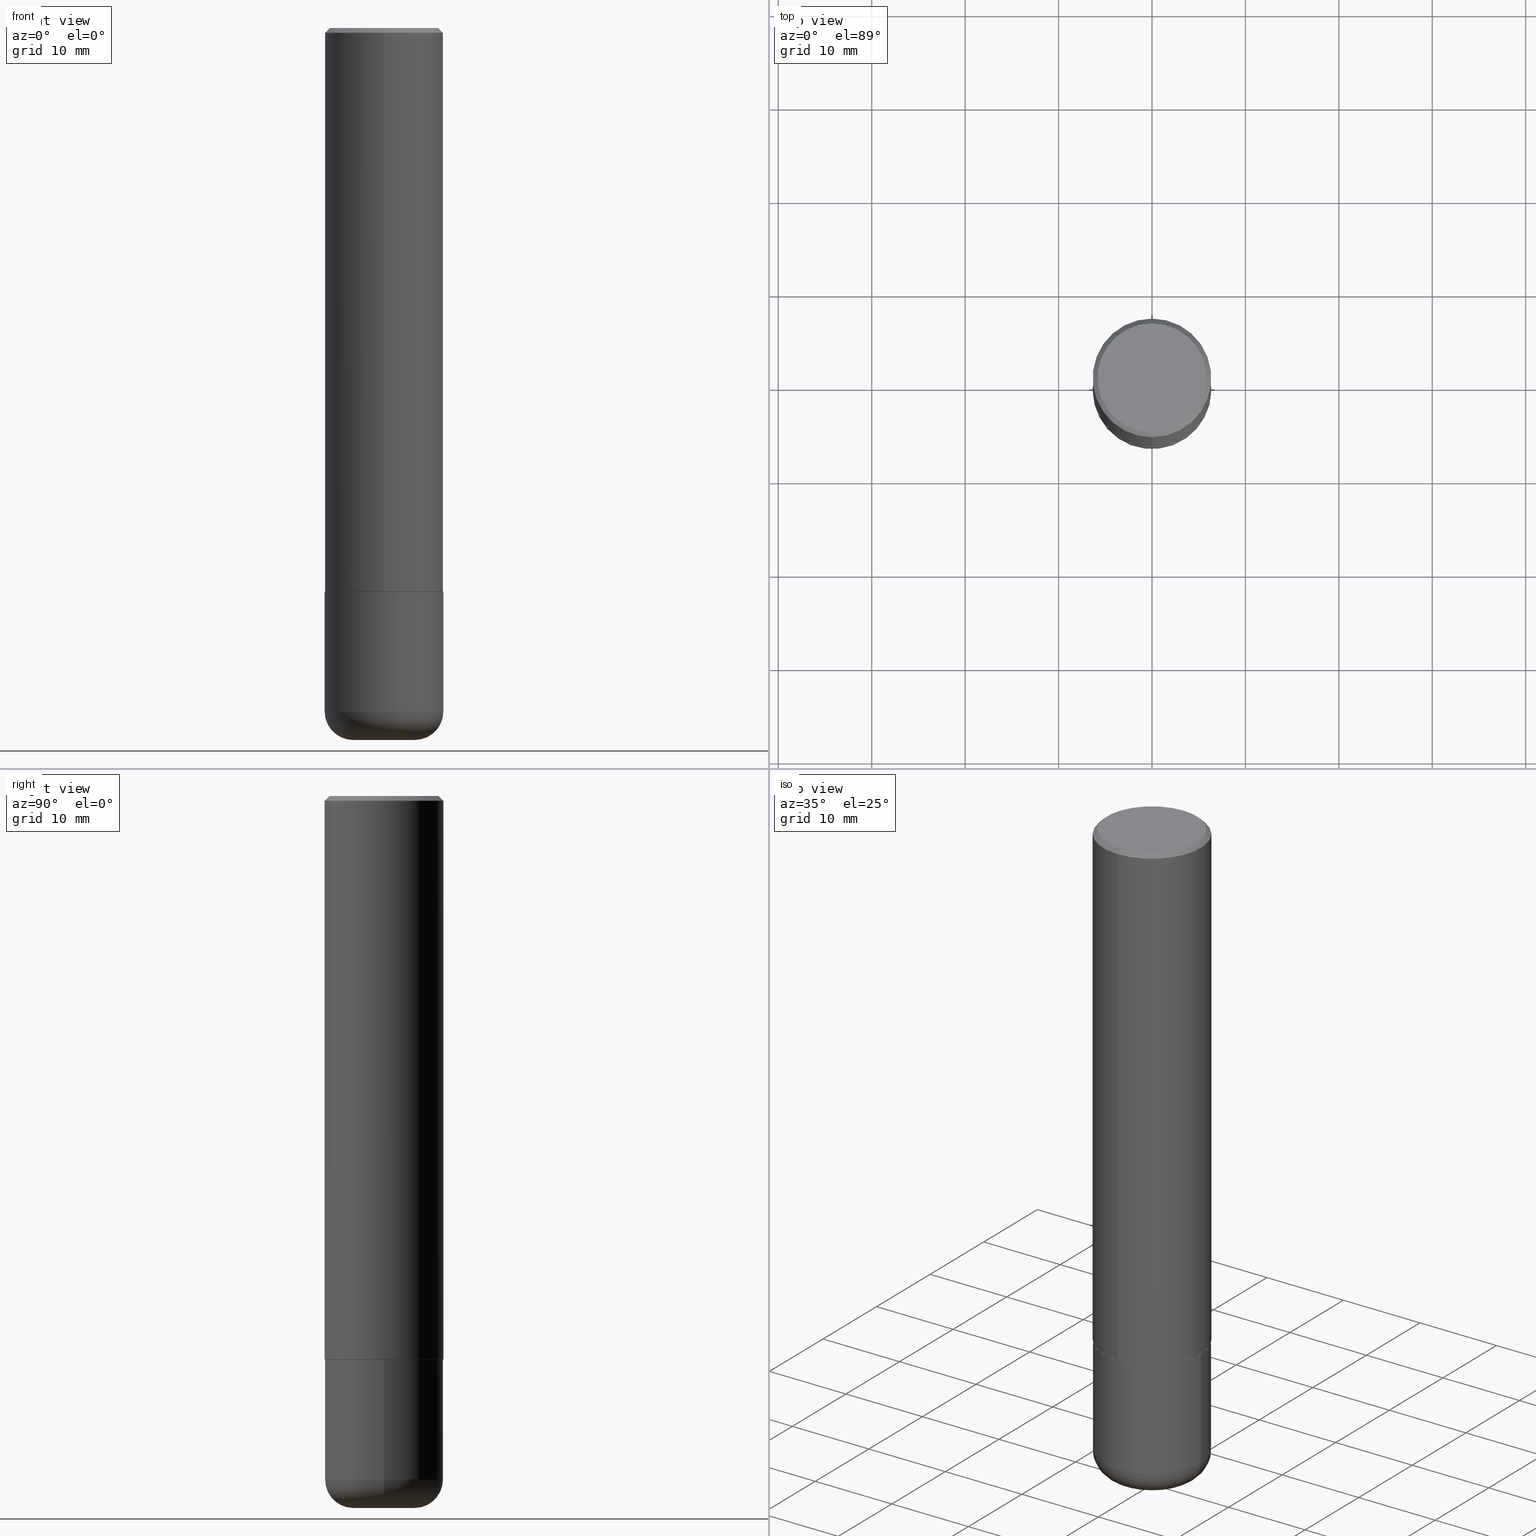
[diagram: canonical four-view strip — front | top / right | iso, engineering-drawing reading convention]
A machine part, canonical four-view strip (front | top / right | iso — engineering-drawing reading convention). The complete STEP part file that produces these views, byte-faithful:
ISO-10303-21;
HEADER;
FILE_DESCRIPTION (( 'STEP AP203' ),
    '1' );
FILE_NAME ('37029.STEP',
    '2024-03-01T18:54:27',
    ( '' ),
    ( '' ),
    'SwSTEP 2.0',
    'SolidWorks 2023',
    '' );
FILE_SCHEMA (( 'CONFIG_CONTROL_DESIGN' ));
ENDSEC;

DATA;
#1 = CARTESIAN_POINT ( 'NONE',  ( 4.891459535375212615E-31, -6.982215254237243146E-17, -0.02000000000000005593 ) ) ;
#2 = ORIENTED_EDGE ( 'NONE', *, *, #14, .F. ) ;
#3 = PLANE ( 'NONE',  #27 ) ;
#4 = DIRECTION ( 'NONE',  ( -2.445729767687599458E-29, 3.491107627118612255E-15, 1.000000000000000000 ) ) ;
#5 = CARTESIAN_POINT ( 'NONE',  ( -3.025389942482403152E-45, 4.318531852026494479E-31, 1.237009085162692923E-16 ) ) ;
#6 = PERSON_AND_ORGANIZATION ( #294, #274 ) ;
#7 = CARTESIAN_POINT ( 'NONE',  ( 5.806162468490361962E-29, -8.287889506779587323E-15, -2.374000000000000110 ) ) ;
#8 = ORIENTED_EDGE ( 'NONE', *, *, #38, .T. ) ;
#9 = COORDINATED_UNIVERSAL_TIME_OFFSET ( 5, 0, .BEHIND. ) ;
#10 = CIRCLE ( 'NONE', #218, 0.2299999999999998712 ) ;
#11 = CARTESIAN_POINT ( 'NONE',  ( 1.745740669421566875E-15, 0.2499999999999999167, -0.02000000000000092676 ) ) ;
#12 = AXIS2_PLACEMENT_3D ( 'NONE', #411, #34, #167 ) ;
#13 = CARTESIAN_POINT ( 'NONE',  ( 0.000000000000000000, 0.000000000000000000, 0.000000000000000000 ) ) ;
#14 = EDGE_CURVE ( 'NONE', #385, #163, #377, .T. ) ;
#15 =( CONVERSION_BASED_UNIT ( 'INCH', #233 ) LENGTH_UNIT ( ) NAMED_UNIT ( #258 ) );
#16 = ORIENTED_EDGE ( 'NONE', *, *, #309, .F. ) ;
#17 = PERSON_AND_ORGANIZATION ( #294, #274 ) ;
#18 = ORIENTED_EDGE ( 'NONE', *, *, #91, .T. ) ;
#19 = EDGE_CURVE ( 'NONE', #66, #345, #306, .T. ) ;
#20 = PERSON_AND_ORGANIZATION ( #294, #274 ) ;
#21 = VERTEX_POINT ( 'NONE', #126 ) ;
#22 = AXIS2_PLACEMENT_3D ( 'NONE', #169, #111, #363 ) ;
#23 = EDGE_CURVE ( 'NONE', #402, #244, #92, .T. ) ;
#24 = DIRECTION ( 'NONE',  ( 1.000000000000000000, -6.982962677686266711E-15, 0.000000000000000000 ) ) ;
#25 = FACE_OUTER_BOUND ( 'NONE', #117, .T. ) ;
#26 = EDGE_LOOP ( 'NONE', ( #284, #61 ) ) ;
#27 = AXIS2_PLACEMENT_3D ( 'NONE', #227, #69, #190 ) ;
#28 = CONICAL_SURFACE ( 'NONE', #301, 0.2500000000000000000, 0.7853981633974471688 ) ;
#29 = DIRECTION ( 'NONE',  ( -1.000000000000000000, 6.982962677686265922E-15, -4.876176775795935793E-29 ) ) ;
#30 = CIRCLE ( 'NONE', #120, 0.2500000000000000000 ) ;
#31 = ORIENTED_EDGE ( 'NONE', *, *, #109, .T. ) ;
#32 = DIRECTION ( 'NONE',  ( 1.000000000000000000, -6.982962677686273810E-15, 0.000000000000000000 ) ) ;
#33 = EDGE_LOOP ( 'NONE', ( #196, #18, #349, #153 ) ) ;
#34 = DIRECTION ( 'NONE',  ( 2.438088387897960049E-29, -3.491481338843145188E-15, -1.000000000000000000 ) ) ;
#35 = DIRECTION ( 'NONE',  ( -2.445729767687599458E-29, 3.491107627118612255E-15, 1.000000000000000000 ) ) ;
#36 = PERSON_AND_ORGANIZATION ( #294, #274 ) ;
#37 = DIRECTION ( 'NONE',  ( 1.000000000000000000, -6.982962677686266711E-15, 0.000000000000000000 ) ) ;
#38 = EDGE_CURVE ( 'NONE', #21, #345, #273, .T. ) ;
#39 = CARTESIAN_POINT ( 'NONE',  ( 1.675911042644703577E-15, 0.2299999999999998712, -6.792538457210110194E-16 ) ) ;
#40 = FACE_OUTER_BOUND ( 'NONE', #353, .T. ) ;
#41 = DIRECTION ( 'NONE',  ( -2.445468806185136597E-29, 3.491481338843145583E-15, 1.000000000000000000 ) ) ;
#42 = ORIENTED_EDGE ( 'NONE', *, *, #152, .T. ) ;
#43 = EDGE_CURVE ( 'NONE', #385, #402, #206, .T. ) ;
#44 = DIRECTION ( 'NONE',  ( -4.851104656540957964E-15, -0.7071067811865491270, -0.7071067811865459074 ) ) ;
#45 = VERTEX_POINT ( 'NONE', #75 ) ;
#46 = LINE ( 'NONE', #237, #57 ) ;
#47 = EDGE_LOOP ( 'NONE', ( #297, #223, #307, #16 ) ) ;
#48 = CALENDAR_DATE ( 2024, 1, 3 ) ;
#49 = EDGE_CURVE ( 'NONE', #82, #45, #132, .T. ) ;
#50 = AXIS2_PLACEMENT_3D ( 'NONE', #389, #164, #384 ) ;
#51 = ORIENTED_EDGE ( 'NONE', *, *, #165, .T. ) ;
#52 = DATE_AND_TIME ( #55, #113 ) ;
#53 = EDGE_LOOP ( 'NONE', ( #130, #80, #42, #114 ) ) ;
#54 = VERTEX_POINT ( 'NONE', #299 ) ;
#55 = CALENDAR_DATE ( 2024, 1, 3 ) ;
#56 = PRODUCT_RELATED_PRODUCT_CATEGORY ( 'detail', '', ( #406 ) ) ;
#57 = VECTOR ( 'NONE', #44, 39.37007874015748143 ) ;
#58 = PRODUCT_DEFINITION_SHAPE ( 'NONE', 'NONE',  #188 ) ;
#59 = CARTESIAN_POINT ( 'NONE',  ( -3.025389942482403152E-45, 4.318531852026494479E-31, 1.237009085162692923E-16 ) ) ;
#60 = DIRECTION ( 'NONE',  ( 2.438088387897960049E-29, -3.491481338843145188E-15, -1.000000000000000000 ) ) ;
#61 = ORIENTED_EDGE ( 'NONE', *, *, #358, .F. ) ;
#62 = EDGE_CURVE ( 'NONE', #82, #305, #204, .T. ) ;
#63 = AXIS2_PLACEMENT_3D ( 'NONE', #228, #198, #326 ) ;
#64 = LOCAL_TIME ( 13, 54, 27.00000000000000000, #9 ) ;
#65 = DIRECTION ( 'NONE',  ( -2.445729767687599458E-29, 3.491107627118612649E-15, 1.000000000000000000 ) ) ;
#66 = VERTEX_POINT ( 'NONE', #333 ) ;
#67 = DIRECTION ( 'NONE',  ( -2.445468806185136877E-29, 3.491481338843145188E-15, 1.000000000000000000 ) ) ;
#68 = CARTESIAN_POINT ( 'NONE',  ( 0.1300000000000000044, -1.138222916462865292E-14, -3.000000000000000444 ) ) ;
#69 = DIRECTION ( 'NONE',  ( -2.445729767687598898E-29, 3.491107627118612649E-15, 1.000000000000000000 ) ) ;
#70 = EDGE_CURVE ( 'NONE', #402, #385, #267, .T. ) ;
#71 = FACE_OUTER_BOUND ( 'NONE', #47, .T. ) ;
#72 = AXIS2_PLACEMENT_3D ( 'NONE', #280, #215, #216 ) ;
#73 = APPROVAL_STATUS ( 'not_yet_approved' ) ;
#74 = CARTESIAN_POINT ( 'NONE',  ( 5.808608198258048994E-29, -8.291380614406705732E-15, -2.375000000000000000 ) ) ;
#75 = CARTESIAN_POINT ( 'NONE',  ( -1.646519519465166573E-15, -0.2299999999999998712, 9.266556627535495054E-16 ) ) ;
#76 = ADVANCED_FACE ( 'NONE', ( #397 ), #85, .T. ) ;
#77 = DATE_TIME_ROLE ( 'creation_date' ) ;
#78 = DIRECTION ( 'NONE',  ( 2.445729767687598898E-29, -3.491107627118612649E-15, -1.000000000000000000 ) ) ;
#79 = APPLICATION_PROTOCOL_DEFINITION ( 'international standard', 'config_control_design', 1994, #145 ) ;
#80 = ORIENTED_EDGE ( 'NONE', *, *, #405, .T. ) ;
#81 = SECURITY_CLASSIFICATION_LEVEL ( 'unclassified' ) ;
#82 = VERTEX_POINT ( 'NONE', #39 ) ;
#83 = AXIS2_PLACEMENT_3D ( 'NONE', #225, #219, #413 ) ;
#84 = CARTESIAN_POINT ( 'NONE',  ( 1.769251412042707241E-15, 0.2489999999999917002, -2.375000000000000888 ) ) ;
#85 = TOROIDAL_SURFACE ( 'NONE', #321, 0.1300000000000000044, 0.1199999999999999123 ) ;
#86 = APPROVAL_STATUS ( 'not_yet_approved' ) ;
#87 = APPROVAL ( #73, 'UNSPECIFIED' ) ;
#88 = CARTESIAN_POINT ( 'NONE',  ( 5.808608198258048994E-29, -8.291380614406705732E-15, -2.375000000000000000 ) ) ;
#89 = CARTESIAN_POINT ( 'NONE',  ( 5.808608198258048994E-29, -8.291380614406705732E-15, -2.375000000000000000 ) ) ;
#90 = CARTESIAN_POINT ( 'NONE',  ( 7.336406418555409790E-29, -1.047444401652943635E-14, -3.000000000000000444 ) ) ;
#91 = EDGE_CURVE ( 'NONE', #163, #305, #395, .T. ) ;
#92 = LINE ( 'NONE', #251, #414 ) ;
#93 = PLANE ( 'NONE',  #121 ) ;
#94 = VERTEX_POINT ( 'NONE', #103 ) ;
#95 = CIRCLE ( 'NONE', #336, 0.1300000000000000044 ) ;
#96 = LOCAL_TIME ( 13, 54, 27.00000000000000000, #276 ) ;
#97 = DIRECTION ( 'NONE',  ( 2.445729767687599458E-29, -3.491107627118612255E-15, -1.000000000000000000 ) ) ;
#98 = EDGE_LOOP ( 'NONE', ( #149, #186, #174, #128 ) ) ;
#99 = ADVANCED_FACE ( 'NONE', ( #234 ), #105, .F. ) ;
#100 = DIRECTION ( 'NONE',  ( -2.445468806185136597E-29, 3.491481338843145583E-15, 1.000000000000000000 ) ) ;
#101 = DIRECTION ( 'NONE',  ( -6.982962677686265922E-15, -1.000000000000000000, 3.278217592397112312E-15 ) ) ;
#102 = PERSON_AND_ORGANIZATION_ROLE ( 'design_owner' ) ;
#103 = CARTESIAN_POINT ( 'NONE',  ( -0.2500000000000000000, -7.397510378410116032E-15, -2.375000000000000000 ) ) ;
#104 = MECHANICAL_CONTEXT ( 'NONE', #119, 'mechanical' ) ;
#105 = PLANE ( 'NONE',  #346 ) ;
#106 = CLOSED_SHELL ( 'NONE', ( #347, #388, #230, #342, #410, #282, #304, #99 ) ) ;
#107 = DIRECTION ( 'NONE',  ( -2.445729767687599458E-29, 3.491107627118612255E-15, 1.000000000000000000 ) ) ;
#108 = CARTESIAN_POINT ( 'NONE',  ( 1.776356839400251254E-15, 0.2500000000000001110, -8.727769067796535567E-16 ) ) ;
#109 = EDGE_CURVE ( 'NONE', #21, #415, #231, .T. ) ;
#110 = ORIENTED_EDGE ( 'NONE', *, *, #62, .T. ) ;
#111 = DIRECTION ( 'NONE',  ( 0.000000000000000000, 0.000000000000000000, 1.000000000000000000 ) ) ;
#112 = FACE_OUTER_BOUND ( 'NONE', #33, .T. ) ;
#113 = LOCAL_TIME ( 13, 54, 27.00000000000000000, #408 ) ;
#114 = ORIENTED_EDGE ( 'NONE', *, *, #62, .F. ) ;
#115 = CC_DESIGN_PERSON_AND_ORGANIZATION_ASSIGNMENT ( #6, #175, ( #188 ) ) ;
#116 = DESIGN_CONTEXT ( 'detailed design', #145, 'design' ) ;
#117 = EDGE_LOOP ( 'NONE', ( #404, #338, #271, #210 ) ) ;
#118 = PERSON_AND_ORGANIZATION_ROLE ( 'design_supplier' ) ;
#119 = APPLICATION_CONTEXT ( 'configuration controlled 3d designs of mechanical parts and assemblies' ) ;
#120 = AXIS2_PLACEMENT_3D ( 'NONE', #331, #296, #37 ) ;
#121 = AXIS2_PLACEMENT_3D ( 'NONE', #352, #60, #29 ) ;
#122 = CARTESIAN_POINT ( 'NONE',  ( 7.042950161813194609E-29, -1.005546625586826130E-14, -2.880000000000000338 ) ) ;
#123 = SHAPE_DEFINITION_REPRESENTATION ( #58, #285 ) ;
#124 = FACE_OUTER_BOUND ( 'NONE', #226, .T. ) ;
#125 = DIRECTION ( 'NONE',  ( 1.000000000000000000, -6.982962677686266711E-15, 4.876176775795935793E-29 ) ) ;
#126 = CARTESIAN_POINT ( 'NONE',  ( 0.2499999999999999722, -1.180120692528982640E-14, -2.880000000000000338 ) ) ;
#127 = FACE_OUTER_BOUND ( 'NONE', #375, .T. ) ;
#128 = ORIENTED_EDGE ( 'NONE', *, *, #316, .F. ) ;
#129 = CARTESIAN_POINT ( 'NONE',  ( -0.2500000000000000000, 1.776356839400250465E-15, -1.229733772563726445E-29 ) ) ;
#130 = ORIENTED_EDGE ( 'NONE', *, *, #334, .F. ) ;
#131 = APPROVAL ( #86, 'UNSPECIFIED' ) ;
#132 = CIRCLE ( 'NONE', #281, 0.2299999999999998712 ) ;
#133 = AXIS2_PLACEMENT_3D ( 'NONE', #90, #286, #32 ) ;
#134 = DIRECTION ( 'NONE',  ( 6.982962677686265922E-15, 1.000000000000000000, -3.483106191921935554E-15 ) ) ;
#135 = DIRECTION ( 'NONE',  ( -6.982962677686265922E-15, -1.000000000000000000, 3.483106191921935554E-15 ) ) ;
#136 = DIRECTION ( 'NONE',  ( 4.937700262164541731E-15, 0.7071067811865442421, -0.7071067811865507924 ) ) ;
#137 = CYLINDRICAL_SURFACE ( 'NONE', #266, 0.2500000000000000000 ) ;
#138 = DIRECTION ( 'NONE',  ( -2.445468806185136597E-29, 3.491481338843145583E-15, 1.000000000000000000 ) ) ;
#139 = VERTEX_POINT ( 'NONE', #68 ) ;
#140 = AXIS2_PLACEMENT_3D ( 'NONE', #350, #252, #313 ) ;
#141 = CALENDAR_DATE ( 2024, 1, 3 ) ;
#142 = EDGE_CURVE ( 'NONE', #139, #66, #95, .T. ) ;
#143 = DIRECTION ( 'NONE',  ( -2.445729767687599458E-29, 3.491107627118612255E-15, 1.000000000000000000 ) ) ;
#144 = AXIS2_PLACEMENT_3D ( 'NONE', #7, #362, #264 ) ;
#145 = APPLICATION_CONTEXT ( 'configuration controlled 3d designs of mechanical parts and assemblies' ) ;
#146 = CYLINDRICAL_SURFACE ( 'NONE', #182, 0.2500000000000001110 ) ;
#147 = ORIENTED_EDGE ( 'NONE', *, *, #49, .T. ) ;
#148 = EDGE_CURVE ( 'NONE', #305, #54, #154, .T. ) ;
#149 = ORIENTED_EDGE ( 'NONE', *, *, #19, .F. ) ;
#150 = APPROVAL_ROLE ( '' ) ;
#151 = EDGE_LOOP ( 'NONE', ( #272, #287 ) ) ;
#152 = EDGE_CURVE ( 'NONE', #54, #305, #399, .T. ) ;
#153 = ORIENTED_EDGE ( 'NONE', *, *, #376, .F. ) ;
#154 = CIRCLE ( 'NONE', #63, 0.2500000000000000000 ) ;
#155 = CIRCLE ( 'NONE', #133, 0.1300000000000000044 ) ;
#156 = APPROVAL_ROLE ( '' ) ;
#157 = DIRECTION ( 'NONE',  ( -2.445729767687599458E-29, 3.491107627118612255E-15, 1.000000000000000000 ) ) ;
#158 = DIRECTION ( 'NONE',  ( 6.982962677686265922E-15, 1.000000000000000000, -3.483106191921935554E-15 ) ) ;
#159 = ORIENTED_EDGE ( 'NONE', *, *, #43, .T. ) ;
#160 = VECTOR ( 'NONE', #67, 39.37007874015748143 ) ;
#161 = VECTOR ( 'NONE', #365, 39.37007874015748143 ) ;
#162 = FACE_OUTER_BOUND ( 'NONE', #184, .T. ) ;
#163 = VERTEX_POINT ( 'NONE', #172 ) ;
#164 = DIRECTION ( 'NONE',  ( -2.445729767687599458E-29, 3.491107627118612255E-15, 1.000000000000000000 ) ) ;
#165 = EDGE_CURVE ( 'NONE', #163, #244, #279, .T. ) ;
#166 = ORIENTED_EDGE ( 'NONE', *, *, #334, .T. ) ;
#167 = DIRECTION ( 'NONE',  ( -1.000000000000000000, 6.982962677686265922E-15, -4.876176775795935793E-29 ) ) ;
#168 = CARTESIAN_POINT ( 'NONE',  ( 4.891459535375212615E-31, -6.982215254237243146E-17, -0.02000000000000005593 ) ) ;
#169 = CARTESIAN_POINT ( 'NONE',  ( 0.000000000000000000, 0.000000000000000000, 0.000000000000000000 ) ) ;
#170 = DIRECTION ( 'NONE',  ( -6.982962677686265133E-15, -1.000000000000000000, 3.291383124896702687E-15 ) ) ;
#171 = DATE_AND_TIME ( #332, #312 ) ;
#172 = CARTESIAN_POINT ( 'NONE',  ( 1.776356839400280836E-15, 0.2499999999999919786, -2.374000000000000998 ) ) ;
#173 = EDGE_CURVE ( 'NONE', #415, #94, #30, .T. ) ;
#174 = ORIENTED_EDGE ( 'NONE', *, *, #309, .T. ) ;
#175 = PERSON_AND_ORGANIZATION_ROLE ( 'creator' ) ;
#176 = EDGE_LOOP ( 'NONE', ( #180, #270, #31, #185 ) ) ;
#177 = APPROVAL_PERSON_ORGANIZATION ( #310, #131, #156 ) ;
#178 = ORIENTED_EDGE ( 'NONE', *, *, #165, .F. ) ;
#179 = DIRECTION ( 'NONE',  ( -6.982962677686266711E-15, -1.000000000000000000, 3.491107627118612649E-15 ) ) ;
#180 = ORIENTED_EDGE ( 'NONE', *, *, #275, .F. ) ;
#181 = AXIS2_PLACEMENT_3D ( 'NONE', #89, #259, #322 ) ;
#182 = AXIS2_PLACEMENT_3D ( 'NONE', #372, #327, #179 ) ;
#183 = AXIS2_PLACEMENT_3D ( 'NONE', #122, #381, #221 ) ;
#184 = EDGE_LOOP ( 'NONE', ( #8, #254, #343, #323 ) ) ;
#185 = ORIENTED_EDGE ( 'NONE', *, *, #290, .F. ) ;
#186 = ORIENTED_EDGE ( 'NONE', *, *, #358, .T. ) ;
#187 = PERSON_AND_ORGANIZATION_ROLE ( 'classification_officer' ) ;
#188 = PRODUCT_DEFINITION ( 'UNKNOWN', '', #193, #116 ) ;
#189 = DIRECTION ( 'NONE',  ( -6.982962677686265922E-15, -1.000000000000000000, 3.491107627118611860E-15 ) ) ;
#190 = DIRECTION ( 'NONE',  ( -6.982962677686265922E-15, -1.000000000000000000, 3.491107627118612649E-15 ) ) ;
#191 = ORIENTED_EDGE ( 'NONE', *, *, #43, .F. ) ;
#192 = CONICAL_SURFACE ( 'NONE', #181, 0.2489999999999999991, 0.7853981633975507526 ) ;
#193 = PRODUCT_DEFINITION_FORMATION_WITH_SPECIFIED_SOURCE ( 'ANY', '', #406, .NOT_KNOWN. ) ;
#194 = APPROVAL ( #238, 'UNSPECIFIED' ) ;
#195 = CARTESIAN_POINT ( 'NONE',  ( 1.772804125721508731E-15, 0.2489999999999917002, -2.375000000000000888 ) ) ;
#196 = ORIENTED_EDGE ( 'NONE', *, *, #213, .T. ) ;
#197 = DIRECTION ( 'NONE',  ( -2.445468806185136597E-29, 3.491481338843145583E-15, 1.000000000000000000 ) ) ;
#198 = DIRECTION ( 'NONE',  ( -2.445729767687599458E-29, 3.491107627118612255E-15, 1.000000000000000000 ) ) ;
#199 =( NAMED_UNIT ( * ) PLANE_ANGLE_UNIT ( ) SI_UNIT ( $, .RADIAN. ) );
#200 = DIRECTION ( 'NONE',  ( 1.000000000000000000, -6.982962677686273810E-15, 0.000000000000000000 ) ) ;
#201 = APPROVAL_ROLE ( '' ) ;
#202 = CARTESIAN_POINT ( 'NONE',  ( 7.336406418555409790E-29, -1.047444401652943635E-14, -3.000000000000000444 ) ) ;
#203 = APPLICATION_PROTOCOL_DEFINITION ( 'international standard', 'config_control_design', 1994, #119 ) ;
#204 = LINE ( 'NONE', #11, #232 ) ;
#205 = CC_DESIGN_PERSON_AND_ORGANIZATION_ASSIGNMENT ( #239, #187, ( #291 ) ) ;
#206 = CIRCLE ( 'NONE', #242, 0.2489999999999999991 ) ;
#207 = CYLINDRICAL_SURFACE ( 'NONE', #243, 0.2500000000000001110 ) ;
#208 = VECTOR ( 'NONE', #65, 39.37007874015748143 ) ;
#209 = DATE_AND_TIME ( #48, #96 ) ;
#210 = ORIENTED_EDGE ( 'NONE', *, *, #23, .F. ) ;
#211 = PERSON_AND_ORGANIZATION_ROLE ( 'creator' ) ;
#212 = AXIS2_PLACEMENT_3D ( 'NONE', #255, #197, #24 ) ;
#213 = EDGE_CURVE ( 'NONE', #244, #163, #390, .T. ) ;
#214 = AXIS2_PLACEMENT_3D ( 'NONE', #168, #4, #135 ) ;
#215 = DIRECTION ( 'NONE',  ( 7.105427357601001859E-15, 1.000000000000000000, -3.491481338843145583E-15 ) ) ;
#216 = DIRECTION ( 'NONE',  ( -1.000000000000000000, 7.105427357601003436E-15, 0.000000000000000000 ) ) ;
#217 = ADVANCED_FACE ( 'NONE', ( #71 ), #355, .T. ) ;
#218 = AXIS2_PLACEMENT_3D ( 'NONE', #59, #157, #189 ) ;
#219 = DIRECTION ( 'NONE',  ( -6.982962677686266711E-15, -1.000000000000000000, 3.491481338843145583E-15 ) ) ;
#220 = FACE_OUTER_BOUND ( 'NONE', #26, .T. ) ;
#221 = DIRECTION ( 'NONE',  ( 1.000000000000000000, -6.982962677686262766E-15, 0.000000000000000000 ) ) ;
#222 = LINE ( 'NONE', #354, #208 ) ;
#223 = ORIENTED_EDGE ( 'NONE', *, *, #19, .T. ) ;
#224 = VECTOR ( 'NONE', #407, 39.37007874015748143 ) ;
#225 = CARTESIAN_POINT ( 'NONE',  ( 0.1300000000000000044, -1.096325140396747629E-14, -2.880000000000000338 ) ) ;
#226 = EDGE_LOOP ( 'NONE', ( #2, #159, #357, #178 ) ) ;
#227 = CARTESIAN_POINT ( 'NONE',  ( 5.808608198258048994E-29, -8.291380614406705732E-15, -2.375000000000000000 ) ) ;
#228 = CARTESIAN_POINT ( 'NONE',  ( 4.891459535375212615E-31, -6.982215254237243146E-17, -0.02000000000000005593 ) ) ;
#229 = PERSON_AND_ORGANIZATION ( #294, #274 ) ;
#230 = ADVANCED_FACE ( 'NONE', ( #317 ), #412, .T. ) ;
#231 = LINE ( 'NONE', #360, #161 ) ;
#232 = VECTOR ( 'NONE', #136, 39.37007874015748143 ) ;
#233 = LENGTH_MEASURE_WITH_UNIT ( LENGTH_MEASURE( 0.02539999999999999897 ), #303 );
#234 = FACE_OUTER_BOUND ( 'NONE', #240, .T. ) ;
#235 = ADVANCED_FACE ( 'NONE', ( #162 ), #359, .T. ) ;
#236 = CONICAL_SURFACE ( 'NONE', #50, 0.2489999999999999991, 0.7853981633975507526 ) ;
#237 = CARTESIAN_POINT ( 'NONE',  ( -1.715124499442882299E-15, -0.2500000000000000555, -0.01999999999999918510 ) ) ;
#238 = APPROVAL_STATUS ( 'not_yet_approved' ) ;
#239 = PERSON_AND_ORGANIZATION ( #294, #274 ) ;
#240 = EDGE_LOOP ( 'NONE', ( #147, #166 ) ) ;
#241 = CALENDAR_DATE ( 2024, 1, 3 ) ;
#242 = AXIS2_PLACEMENT_3D ( 'NONE', #88, #143, #401 ) ;
#243 = AXIS2_PLACEMENT_3D ( 'NONE', #339, #107, #263 ) ;
#244 = VERTEX_POINT ( 'NONE', #361 ) ;
#245 = MANIFOLD_SOLID_BREP ( 'Body-Move/Copy2[1]', #344 ) ;
#246 = COORDINATED_UNIVERSAL_TIME_OFFSET ( 5, 0, .BEHIND. ) ;
#247 = MANIFOLD_SOLID_BREP ( 'Body-Move/Copy2[2]', #106 ) ;
#248 = CARTESIAN_POINT ( 'NONE',  ( 7.042950161813194609E-29, -1.005546625586826130E-14, -2.880000000000000338 ) ) ;
#249 = AXIS2_PLACEMENT_3D ( 'NONE', #74, #35, #170 ) ;
#250 = CARTESIAN_POINT ( 'NONE',  ( 1.745740669421566875E-15, 0.2499999999999999167, -0.02000000000000092676 ) ) ;
#251 = CARTESIAN_POINT ( 'NONE',  ( -1.738757706743822090E-15, -0.2490000000000082980, -2.374999999999999556 ) ) ;
#252 = DIRECTION ( 'NONE',  ( -2.445468806185136597E-29, 3.491481338843145583E-15, 1.000000000000000000 ) ) ;
#253 = CC_DESIGN_DATE_AND_TIME_ASSIGNMENT ( #379, #341, ( #291 ) ) ;
#254 = ORIENTED_EDGE ( 'NONE', *, *, #275, .T. ) ;
#255 = CARTESIAN_POINT ( 'NONE',  ( 5.807988414689700538E-29, -8.292268179752471696E-15, -2.375000000000000000 ) ) ;
#256 = ORIENTED_EDGE ( 'NONE', *, *, #70, .F. ) ;
#257 = AXIS2_PLACEMENT_3D ( 'NONE', #248, #278, #383 ) ;
#258 = DIMENSIONAL_EXPONENTS ( 1.000000000000000000, 0.000000000000000000, 0.000000000000000000, 0.000000000000000000, 0.000000000000000000, 0.000000000000000000, 0.000000000000000000 ) ;
#259 = DIRECTION ( 'NONE',  ( -2.445729767687599458E-29, 3.491107627118612255E-15, 1.000000000000000000 ) ) ;
#260 = CARTESIAN_POINT ( 'NONE',  ( 5.806162468490361962E-29, -8.287889506779587323E-15, -2.374000000000000110 ) ) ;
#261 = CC_DESIGN_PERSON_AND_ORGANIZATION_ASSIGNMENT ( #36, #102, ( #406 ) ) ;
#262 = DIRECTION ( 'NONE',  ( 1.000000000000000000, -6.982962677686265133E-15, 4.883557194083112340E-29 ) ) ;
#263 = DIRECTION ( 'NONE',  ( -6.982962677686266711E-15, -1.000000000000000000, 3.491107627118612649E-15 ) ) ;
#264 = DIRECTION ( 'NONE',  ( -6.982962677686265922E-15, -1.000000000000000000, 3.278217592397112312E-15 ) ) ;
#265 = CIRCLE ( 'NONE', #83, 0.1199999999999999262 ) ;
#266 = AXIS2_PLACEMENT_3D ( 'NONE', #13, #394, #292 ) ;
#267 = CIRCLE ( 'NONE', #249, 0.2489999999999999991 ) ;
#268 = ADVANCED_FACE ( 'NONE', ( #324 ), #386, .F. ) ;
#269 = CARTESIAN_POINT ( 'NONE',  ( 7.042950161813194609E-29, -1.005546625586826130E-14, -2.880000000000000338 ) ) ;
#270 = ORIENTED_EDGE ( 'NONE', *, *, #316, .T. ) ;
#271 = ORIENTED_EDGE ( 'NONE', *, *, #213, .F. ) ;
#272 = ORIENTED_EDGE ( 'NONE', *, *, #173, .T. ) ;
#273 = CIRCLE ( 'NONE', #183, 0.2500000000000000000 ) ;
#274 = ORGANIZATION ( 'UNSPECIFIED', 'UNSPECIFIED', '' ) ;
#275 = EDGE_CURVE ( 'NONE', #345, #94, #283, .T. ) ;
#276 = COORDINATED_UNIVERSAL_TIME_OFFSET ( 5, 0, .BEHIND. ) ;
#277 = CARTESIAN_POINT ( 'NONE',  ( 0.000000000000000000, 0.000000000000000000, 0.000000000000000000 ) ) ;
#278 = DIRECTION ( 'NONE',  ( -2.445468806185136597E-29, 3.491481338843145583E-15, 1.000000000000000000 ) ) ;
#279 = CIRCLE ( 'NONE', #300, 0.2500000000000002776 ) ;
#280 = CARTESIAN_POINT ( 'NONE',  ( -0.1300000000000000044, -9.131760699380130235E-15, -2.880000000000000338 ) ) ;
#281 = AXIS2_PLACEMENT_3D ( 'NONE', #5, #328, #368 ) ;
#282 = ADVANCED_FACE ( 'NONE', ( #124 ), #192, .T. ) ;
#283 = LINE ( 'NONE', #129, #160 ) ;
#284 = ORIENTED_EDGE ( 'NONE', *, *, #142, .F. ) ;
#285 = ADVANCED_BREP_SHAPE_REPRESENTATION ( '37029', ( #245, #247, #22 ), #337 ) ;
#286 = DIRECTION ( 'NONE',  ( -2.445468806185136597E-29, 3.491481338843145583E-15, 1.000000000000000000 ) ) ;
#287 = ORIENTED_EDGE ( 'NONE', *, *, #290, .T. ) ;
#288 = FACE_OUTER_BOUND ( 'NONE', #391, .T. ) ;
#289 = DIRECTION ( 'NONE',  ( 6.982962677686265922E-15, 1.000000000000000000, -3.491107627118612649E-15 ) ) ;
#290 = EDGE_CURVE ( 'NONE', #94, #415, #364, .T. ) ;
#291 = SECURITY_CLASSIFICATION ( '', '', #81 ) ;
#292 = DIRECTION ( 'NONE',  ( 1.000000000000000000, -6.982962677686266711E-15, 4.876176775795935793E-29 ) ) ;
#293 = DIRECTION ( 'NONE',  ( -2.445729767687599458E-29, 3.491107627118612649E-15, 1.000000000000000000 ) ) ;
#294 = PERSON ( 'UNSPECIFIED', 'UNSPECIFIED', 'UNSPECIFIED', ('UNSPECIFIED'), ('UNSPECIFIED'), ('UNSPECIFIED') ) ;
#295 = APPROVAL_DATE_TIME ( #171, #87 ) ;
#296 = DIRECTION ( 'NONE',  ( -2.445468806185136597E-29, 3.491481338843145583E-15, 1.000000000000000000 ) ) ;
#297 = ORIENTED_EDGE ( 'NONE', *, *, #142, .T. ) ;
#298 = CARTESIAN_POINT ( 'NONE',  ( -1.738757706743822090E-15, -0.2490000000000082980, -2.374999999999999556 ) ) ;
#299 = CARTESIAN_POINT ( 'NONE',  ( -1.715124499442882299E-15, -0.2500000000000000555, -0.01999999999999918510 ) ) ;
#300 = AXIS2_PLACEMENT_3D ( 'NONE', #260, #393, #101 ) ;
#301 = AXIS2_PLACEMENT_3D ( 'NONE', #1, #97, #158 ) ;
#302 = CARTESIAN_POINT ( 'NONE',  ( 0.2500000000000000000, -1.003800884917403837E-14, -2.375000000000000000 ) ) ;
#303 =( LENGTH_UNIT ( ) NAMED_UNIT ( * ) SI_UNIT ( $, .METRE. ) );
#304 = ADVANCED_FACE ( 'NONE', ( #127 ), #3, .F. ) ;
#305 = VERTEX_POINT ( 'NONE', #250 ) ;
#306 = CIRCLE ( 'NONE', #72, 0.1199999999999999262 ) ;
#307 = ORIENTED_EDGE ( 'NONE', *, *, #38, .F. ) ;
#308 = ORIENTED_EDGE ( 'NONE', *, *, #148, .T. ) ;
#309 = EDGE_CURVE ( 'NONE', #139, #21, #265, .T. ) ;
#310 = PERSON_AND_ORGANIZATION ( #294, #274 ) ;
#311 = AXIS2_PLACEMENT_3D ( 'NONE', #392, #416, #134 ) ;
#312 = LOCAL_TIME ( 13, 54, 27.00000000000000000, #330 ) ;
#313 = DIRECTION ( 'NONE',  ( 1.000000000000000000, -6.982962677686262766E-15, 0.000000000000000000 ) ) ;
#314 = CARTESIAN_POINT ( 'NONE',  ( -0.2499999999999999722, -8.279109416468010833E-15, -2.880000000000000338 ) ) ;
#315 = ORIENTED_EDGE ( 'NONE', *, *, #405, .F. ) ;
#316 = EDGE_CURVE ( 'NONE', #345, #21, #318, .T. ) ;
#317 = FACE_OUTER_BOUND ( 'NONE', #53, .T. ) ;
#318 = CIRCLE ( 'NONE', #140, 0.2500000000000000000 ) ;
#319 = CC_DESIGN_SECURITY_CLASSIFICATION ( #291, ( #193 ) ) ;
#320 = ORIENTED_EDGE ( 'NONE', *, *, #148, .F. ) ;
#321 = AXIS2_PLACEMENT_3D ( 'NONE', #269, #41, #262 ) ;
#322 = DIRECTION ( 'NONE',  ( -6.982962677686265133E-15, -1.000000000000000000, 3.291383124896702687E-15 ) ) ;
#323 = ORIENTED_EDGE ( 'NONE', *, *, #109, .F. ) ;
#324 = FACE_OUTER_BOUND ( 'NONE', #151, .T. ) ;
#325 = CC_DESIGN_PERSON_AND_ORGANIZATION_ASSIGNMENT ( #17, #211, ( #193 ) ) ;
#326 = DIRECTION ( 'NONE',  ( -6.982962677686265922E-15, -1.000000000000000000, 3.483106191921935554E-15 ) ) ;
#327 = DIRECTION ( 'NONE',  ( -2.445729767687599458E-29, 3.491107627118612255E-15, 1.000000000000000000 ) ) ;
#328 = DIRECTION ( 'NONE',  ( -2.445729767687599458E-29, 3.491107627118612255E-15, 1.000000000000000000 ) ) ;
#329 = CC_DESIGN_APPROVAL ( #194, ( #193 ) ) ;
#330 = COORDINATED_UNIVERSAL_TIME_OFFSET ( 5, 0, .BEHIND. ) ;
#331 = CARTESIAN_POINT ( 'NONE',  ( 5.807988414689700538E-29, -8.292268179752471696E-15, -2.375000000000000000 ) ) ;
#332 = CALENDAR_DATE ( 2024, 1, 3 ) ;
#333 = CARTESIAN_POINT ( 'NONE',  ( -0.1300000000000000044, -8.914923938254659640E-15, -3.000000000000000444 ) ) ;
#334 = EDGE_CURVE ( 'NONE', #45, #82, #10, .T. ) ;
#335 = PERSON_AND_ORGANIZATION ( #294, #274 ) ;
#336 = AXIS2_PLACEMENT_3D ( 'NONE', #202, #138, #200 ) ;
#337 =( GEOMETRIC_REPRESENTATION_CONTEXT ( 3 ) GLOBAL_UNCERTAINTY_ASSIGNED_CONTEXT ( ( #398 ) ) GLOBAL_UNIT_ASSIGNED_CONTEXT ( ( #15, #199, #370 ) ) REPRESENTATION_CONTEXT ( 'NONE', 'WORKASPACE' ) );
#338 = ORIENTED_EDGE ( 'NONE', *, *, #14, .T. ) ;
#339 = CARTESIAN_POINT ( 'NONE',  ( 0.000000000000000000, 0.000000000000000000, 0.000000000000000000 ) ) ;
#340 = ORIENTED_EDGE ( 'NONE', *, *, #91, .F. ) ;
#341 = DATE_TIME_ROLE ( 'classification_date' ) ;
#342 = ADVANCED_FACE ( 'NONE', ( #288 ), #28, .T. ) ;
#343 = ORIENTED_EDGE ( 'NONE', *, *, #173, .F. ) ;
#344 = CLOSED_SHELL ( 'NONE', ( #235, #217, #268, #396, #76, #369 ) ) ;
#345 = VERTEX_POINT ( 'NONE', #314 ) ;
#346 = AXIS2_PLACEMENT_3D ( 'NONE', #371, #78, #289 ) ;
#347 = ADVANCED_FACE ( 'NONE', ( #25 ), #236, .T. ) ;
#348 = DIRECTION ( 'NONE',  ( -4.937700262165053702E-15, -0.7071067811866175168, 0.7071067811864775177 ) ) ;
#349 = ORIENTED_EDGE ( 'NONE', *, *, #152, .F. ) ;
#350 = CARTESIAN_POINT ( 'NONE',  ( 7.042950161813194609E-29, -1.005546625586826130E-14, -2.880000000000000338 ) ) ;
#351 = CC_DESIGN_PERSON_AND_ORGANIZATION_ASSIGNMENT ( #20, #118, ( #193 ) ) ;
#352 = CARTESIAN_POINT ( 'NONE',  ( 7.336406418555409790E-29, -1.047444401652943635E-14, -3.000000000000000444 ) ) ;
#353 = EDGE_LOOP ( 'NONE', ( #340, #51, #418, #320 ) ) ;
#354 = CARTESIAN_POINT ( 'NONE',  ( -1.745740669421567467E-15, -0.2500000000000001110, 8.727769067796535567E-16 ) ) ;
#355 = TOROIDAL_SURFACE ( 'NONE', #257, 0.1300000000000000044, 0.1199999999999999123 ) ;
#356 = APPROVAL_PERSON_ORGANIZATION ( #229, #87, #201 ) ;
#357 = ORIENTED_EDGE ( 'NONE', *, *, #23, .T. ) ;
#358 = EDGE_CURVE ( 'NONE', #66, #139, #155, .T. ) ;
#359 = CYLINDRICAL_SURFACE ( 'NONE', #366, 0.2500000000000000000 ) ;
#360 = CARTESIAN_POINT ( 'NONE',  ( 0.2500000000000000000, -1.745740669421566678E-15, 1.219044193948983948E-29 ) ) ;
#361 = CARTESIAN_POINT ( 'NONE',  ( -1.745740669421510471E-15, -0.2500000000000085487, -2.373999999999999222 ) ) ;
#362 = DIRECTION ( 'NONE',  ( -2.445729767687599458E-29, 3.491107627118612255E-15, 1.000000000000000000 ) ) ;
#363 = DIRECTION ( 'NONE',  ( 1.000000000000000000, 0.000000000000000000, 0.000000000000000000 ) ) ;
#364 = CIRCLE ( 'NONE', #212, 0.2500000000000000000 ) ;
#365 = DIRECTION ( 'NONE',  ( -2.445468806185136877E-29, 3.491481338843145188E-15, 1.000000000000000000 ) ) ;
#366 = AXIS2_PLACEMENT_3D ( 'NONE', #277, #100, #125 ) ;
#367 = FACE_OUTER_BOUND ( 'NONE', #176, .T. ) ;
#368 = DIRECTION ( 'NONE',  ( -6.982962677686265922E-15, -1.000000000000000000, 3.491107627118611860E-15 ) ) ;
#369 = ADVANCED_FACE ( 'NONE', ( #220 ), #93, .T. ) ;
#370 =( NAMED_UNIT ( * ) SI_UNIT ( $, .STERADIAN. ) SOLID_ANGLE_UNIT ( ) );
#371 = CARTESIAN_POINT ( 'NONE',  ( 1.606081415867840278E-15, 0.2299999999999998712, -7.411042999791457395E-16 ) ) ;
#372 = CARTESIAN_POINT ( 'NONE',  ( 0.000000000000000000, 0.000000000000000000, 0.000000000000000000 ) ) ;
#373 = APPROVAL_PERSON_ORGANIZATION ( #335, #194, #150 ) ;
#374 = CC_DESIGN_APPROVAL ( #131, ( #291 ) ) ;
#375 = EDGE_LOOP ( 'NONE', ( #256, #191 ) ) ;
#376 = EDGE_CURVE ( 'NONE', #244, #54, #222, .T. ) ;
#377 = LINE ( 'NONE', #84, #224 ) ;
#378 = LOCAL_TIME ( 13, 54, 27.00000000000000000, #246 ) ;
#379 = DATE_AND_TIME ( #241, #378 ) ;
#380 = VECTOR ( 'NONE', #293, 39.37007874015748143 ) ;
#381 = DIRECTION ( 'NONE',  ( -2.445468806185136597E-29, 3.491481338843145583E-15, 1.000000000000000000 ) ) ;
#382 = APPROVAL_DATE_TIME ( #52, #194 ) ;
#383 = DIRECTION ( 'NONE',  ( 1.000000000000000000, -6.982962677686265133E-15, 4.883557194083112340E-29 ) ) ;
#384 = DIRECTION ( 'NONE',  ( -6.982962677686265133E-15, -1.000000000000000000, 3.291383124896702687E-15 ) ) ;
#385 = VERTEX_POINT ( 'NONE', #195 ) ;
#386 = PLANE ( 'NONE',  #12 ) ;
#387 = ORIENTED_EDGE ( 'NONE', *, *, #49, .F. ) ;
#388 = ADVANCED_FACE ( 'NONE', ( #112 ), #207, .T. ) ;
#389 = CARTESIAN_POINT ( 'NONE',  ( 5.808608198258048994E-29, -8.291380614406705732E-15, -2.375000000000000000 ) ) ;
#390 = CIRCLE ( 'NONE', #144, 0.2500000000000002776 ) ;
#391 = EDGE_LOOP ( 'NONE', ( #315, #387, #110, #308 ) ) ;
#392 = CARTESIAN_POINT ( 'NONE',  ( 4.891459535375212615E-31, -6.982215254237243146E-17, -0.02000000000000005593 ) ) ;
#393 = DIRECTION ( 'NONE',  ( -2.445729767687599458E-29, 3.491107627118612255E-15, 1.000000000000000000 ) ) ;
#394 = DIRECTION ( 'NONE',  ( -2.445468806185136597E-29, 3.491481338843145583E-15, 1.000000000000000000 ) ) ;
#395 = LINE ( 'NONE', #108, #380 ) ;
#396 = ADVANCED_FACE ( 'NONE', ( #367 ), #137, .T. ) ;
#397 = FACE_OUTER_BOUND ( 'NONE', #98, .T. ) ;
#398 = UNCERTAINTY_MEASURE_WITH_UNIT (LENGTH_MEASURE( 1.000000000000000082E-05 ), #15, 'distance_accuracy_value', 'NONE');
#399 = CIRCLE ( 'NONE', #214, 0.2500000000000000000 ) ;
#400 = DATE_AND_TIME ( #141, #64 ) ;
#401 = DIRECTION ( 'NONE',  ( -6.982962677686265133E-15, -1.000000000000000000, 3.291383124896702687E-15 ) ) ;
#402 = VERTEX_POINT ( 'NONE', #298 ) ;
#403 = CC_DESIGN_APPROVAL ( #87, ( #188 ) ) ;
#404 = ORIENTED_EDGE ( 'NONE', *, *, #70, .T. ) ;
#405 = EDGE_CURVE ( 'NONE', #45, #54, #46, .T. ) ;
#406 = PRODUCT ( '37029', '37029', '', ( #104 ) ) ;
#407 = DIRECTION ( 'NONE',  ( 5.024295867788576727E-15, 0.7071067811866224018, 0.7071067811864726327 ) ) ;
#408 = COORDINATED_UNIVERSAL_TIME_OFFSET ( 5, 0, .BEHIND. ) ;
#409 = APPROVAL_DATE_TIME ( #209, #131 ) ;
#410 = ADVANCED_FACE ( 'NONE', ( #40 ), #146, .T. ) ;
#411 = CARTESIAN_POINT ( 'NONE',  ( 5.807988414689700538E-29, -8.292268179752471696E-15, -2.375000000000000000 ) ) ;
#412 = CONICAL_SURFACE ( 'NONE', #311, 0.2500000000000000000, 0.7853981633974471688 ) ;
#413 = DIRECTION ( 'NONE',  ( 1.000000000000000000, -6.982962677686272233E-15, 0.000000000000000000 ) ) ;
#414 = VECTOR ( 'NONE', #348, 39.37007874015748143 ) ;
#415 = VERTEX_POINT ( 'NONE', #302 ) ;
#416 = DIRECTION ( 'NONE',  ( 2.445729767687599458E-29, -3.491107627118612255E-15, -1.000000000000000000 ) ) ;
#417 = CC_DESIGN_DATE_AND_TIME_ASSIGNMENT ( #400, #77, ( #188 ) ) ;
#418 = ORIENTED_EDGE ( 'NONE', *, *, #376, .T. ) ;
ENDSEC;
END-ISO-10303-21;
